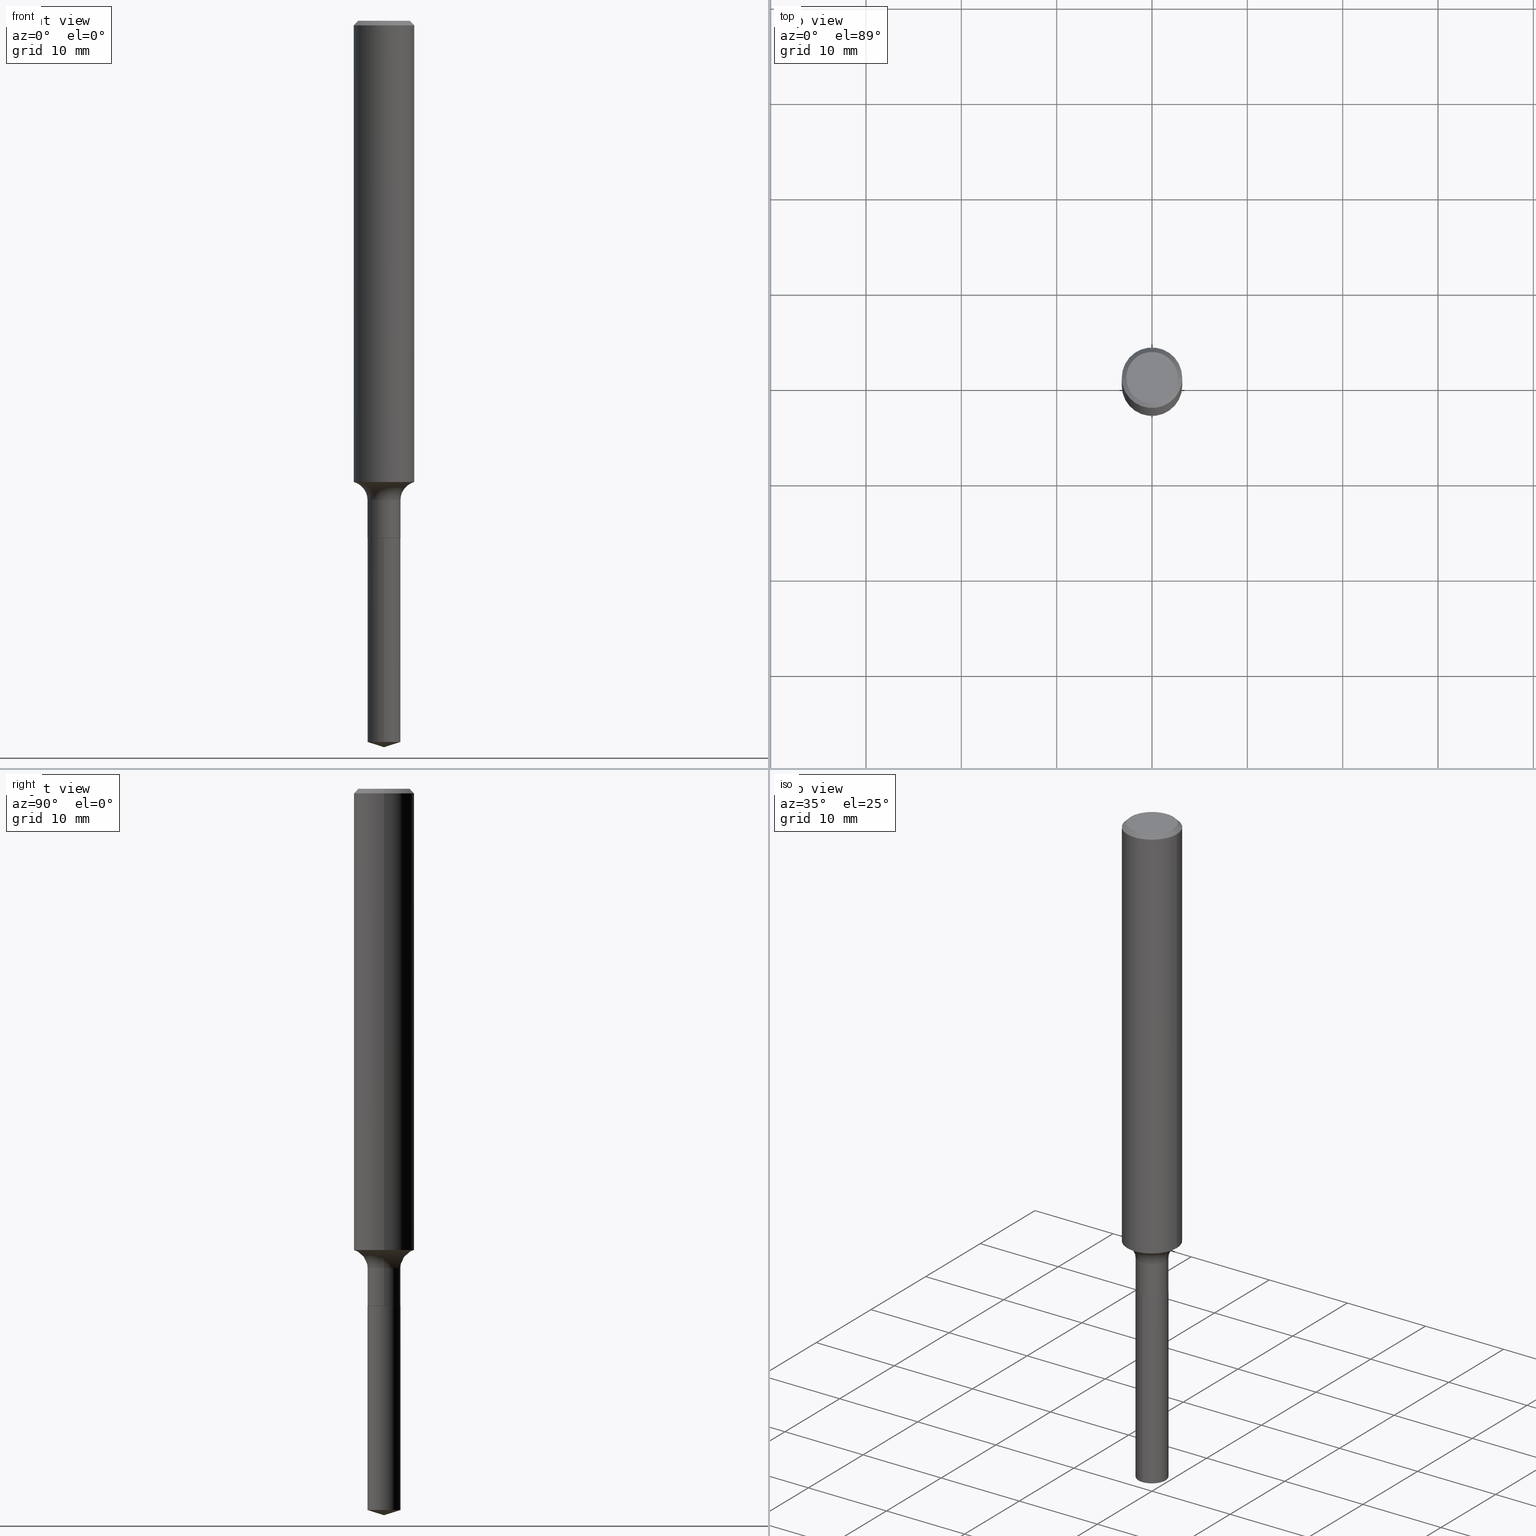
[diagram: canonical four-view strip — front | top / right | iso, engineering-drawing reading convention]
A machine part, canonical four-view strip (front | top / right | iso — engineering-drawing reading convention). The complete STEP part file that produces these views, byte-faithful:
ISO-10303-21;
HEADER;
FILE_DESCRIPTION (( 'STEP AP203' ),
    '1' );
FILE_NAME ('51582.STEP',
    '2024-04-19T13:02:44',
    ( '' ),
    ( '' ),
    'SwSTEP 2.0',
    'SolidWorks 2023',
    '' );
FILE_SCHEMA (( 'CONFIG_CONTROL_DESIGN' ));
ENDSEC;

DATA;
#1 = DIRECTION ( 'NONE',  ( 2.438088387897960049E-29, -3.491481338843145188E-15, -1.000000000000000000 ) ) ;
#2 = DATE_AND_TIME ( #315, #38 ) ;
#3 = EDGE_CURVE ( 'NONE', #265, #300, #84, .T. ) ;
#4 = CARTESIAN_POINT ( 'NONE',  ( -8.842895288216036193E-28, 1.277200107107775553E-13, 36.37007874015748143 ) ) ;
#5 = VECTOR ( 'NONE', #145, 39.37007874015748143 ) ;
#6 = DIRECTION ( 'NONE',  ( -2.432147788512749080E-29, 3.510557794335245055E-15, 1.000000000000000000 ) ) ;
#7 = CARTESIAN_POINT ( 'NONE',  ( 0.06800000000000000488, -7.930899861182205468E-15, -2.135500000000000398 ) ) ;
#8 = LOCAL_TIME ( 9, 2, 44.00000000000000000, #311 ) ;
#9 = DATE_AND_TIME ( #354, #74 ) ;
#10 = FACE_OUTER_BOUND ( 'NONE', #322, .T. ) ;
#11 = DIRECTION ( 'NONE',  ( -6.982962677686265922E-15, -1.000000000000000000, 4.017423520094504617E-15 ) ) ;
#12 = PERSON_AND_ORGANIZATION_ROLE ( 'design_supplier' ) ;
#13 = CARTESIAN_POINT ( 'NONE',  ( -0.1250000000000001110, 8.881784197001260212E-16, -6.148668862818637832E-30 ) ) ;
#14 = DIRECTION ( 'NONE',  ( 1.000000000000000000, -6.982962677686266711E-15, 0.000000000000000000 ) ) ;
#15 = EDGE_CURVE ( 'NONE', #334, #362, #160, .T. ) ;
#16 = ORIENTED_EDGE ( 'NONE', *, *, #390, .T. ) ;
#17 = ORIENTED_EDGE ( 'NONE', *, *, #125, .F. ) ;
#18 = MANIFOLD_SOLID_BREP ( 'Body-Move/Copy2[1]', #62 ) ;
#19 = CARTESIAN_POINT ( 'NONE',  ( 0.06799999999999999101, -4.748414620826661284E-16, 3.315800207541236003E-30 ) ) ;
#20 = CARTESIAN_POINT ( 'NONE',  ( 4.841050048724097207E-29, -6.911736458373892242E-15, -1.979600000000000470 ) ) ;
#21 = AXIS2_PLACEMENT_3D ( 'NONE', #138, #216, #332 ) ;
#22 = AXIS2_PLACEMENT_3D ( 'NONE', #393, #55, #471 ) ;
#23 = EDGE_LOOP ( 'NONE', ( #262, #445, #98, #188 ) ) ;
#24 = DIRECTION ( 'NONE',  ( 1.000000000000000000, -6.982962677686260400E-15, 0.000000000000000000 ) ) ;
#25 = CARTESIAN_POINT ( 'NONE',  ( 0.1250000000000000000, -9.230275248247509846E-16, -0.01875000000000014155 ) ) ;
#26 = ORIENTED_EDGE ( 'NONE', *, *, #113, .F. ) ;
#27 = CC_DESIGN_PERSON_AND_ORGANIZATION_ASSIGNMENT ( #462, #135, ( #108 ) ) ;
#28 = CARTESIAN_POINT ( 'NONE',  ( 0.1062499999999999972, -8.259777185439880671E-16, -2.602374448187577153E-17 ) ) ;
#29 = VERTEX_POINT ( 'NONE', #78 ) ;
#30 = CIRCLE ( 'NONE', #21, 0.1250000000000002498 ) ;
#31 = AXIS2_PLACEMENT_3D ( 'NONE', #81, #447, #487 ) ;
#32 = VERTEX_POINT ( 'NONE', #7 ) ;
#33 = EDGE_LOOP ( 'NONE', ( #147, #285, #112, #468 ) ) ;
#34 = VERTEX_POINT ( 'NONE', #308 ) ;
#35 = EDGE_CURVE ( 'NONE', #29, #102, #352, .T. ) ;
#36 = VECTOR ( 'NONE', #174, 39.37007874015748143 ) ;
#37 = AXIS2_PLACEMENT_3D ( 'NONE', #169, #283, #24 ) ;
#38 = LOCAL_TIME ( 9, 2, 44.00000000000000000, #363 ) ;
#39 = ADVANCED_FACE ( 'NONE', ( #345 ), #206, .T. ) ;
#40 = FACE_OUTER_BOUND ( 'NONE', #257, .T. ) ;
#41 = DIRECTION ( 'NONE',  ( 1.000000000000000000, 0.000000000000000000, 0.000000000000000000 ) ) ;
#42 = CARTESIAN_POINT ( 'NONE',  ( -0.1250000000000000000, 8.074050596074738982E-16, -0.01875000000000014155 ) ) ;
#43 = LENGTH_MEASURE_WITH_UNIT ( LENGTH_MEASURE( 0.02539999999999999897 ), #341 );
#44 = APPLICATION_PROTOCOL_DEFINITION ( 'international standard', 'config_control_design', 1994, #269 ) ;
#45 = EDGE_CURVE ( 'NONE', #102, #265, #202, .T. ) ;
#46 = DATE_AND_TIME ( #56, #231 ) ;
#47 = CARTESIAN_POINT ( 'NONE',  ( 5.223521370011452416E-29, -7.457804139768961435E-15, -2.136000000000000565 ) ) ;
#48 = CONICAL_SURFACE ( 'NONE', #177, 0.06750000000000000444, 0.7853981633978154298 ) ;
#49 = DIRECTION ( 'NONE',  ( -2.438088387897960049E-29, 3.491481338843145188E-15, 1.000000000000000000 ) ) ;
#50 = CIRCLE ( 'NONE', #402, 0.07800000000000001377 ) ;
#51 = DIRECTION ( 'NONE',  ( 1.000000000000000000, -6.982962677686268288E-15, 0.000000000000000000 ) ) ;
#52 = ADVANCED_FACE ( 'NONE', ( #40 ), #268, .T. ) ;
#53 = PERSON_AND_ORGANIZATION ( #287, #109 ) ;
#54 = DIRECTION ( 'NONE',  ( 6.776566513254269181E-15, 0.9537169507482307074, 0.3007057995042609622 ) ) ;
#55 = DIRECTION ( 'NONE',  ( -2.445468806185136597E-29, 3.491481338843145583E-15, 1.000000000000000000 ) ) ;
#56 = CALENDAR_DATE ( 2024, 19, 4 ) ;
#57 = DIRECTION ( 'NONE',  ( 1.000000000000000000, -6.982962677686264344E-15, 0.000000000000000000 ) ) ;
#58 = CARTESIAN_POINT ( 'NONE',  ( -0.1062499999999999972, 7.746724220558198188E-16, -2.602374448188655674E-17 ) ) ;
#59 = ORIENTED_EDGE ( 'NONE', *, *, #346, .T. ) ;
#60 = DIRECTION ( 'NONE',  ( 1.000000000000000000, -6.982962677686269866E-15, 0.000000000000000000 ) ) ;
#61 = DIRECTION ( 'NONE',  ( 2.445468806185136597E-29, -3.491481338843145583E-15, -1.000000000000000000 ) ) ;
#62 = CLOSED_SHELL ( 'NONE', ( #39, #318, #52, #263, #89 ) ) ;
#63 = CIRCLE ( 'NONE', #234, 0.06800000000000001876 ) ;
#64 = APPROVAL_PERSON_ORGANIZATION ( #469, #251, #281 ) ;
#65 = ORIENTED_EDGE ( 'NONE', *, *, #233, .T. ) ;
#66 = DIRECTION ( 'NONE',  ( -2.445468806185136597E-29, 3.491481338843145583E-15, 1.000000000000000000 ) ) ;
#67 = ADVANCED_FACE ( 'NONE', ( #451 ), #237, .F. ) ;
#68 = VERTEX_POINT ( 'NONE', #165 ) ;
#69 = DESIGN_CONTEXT ( 'detailed design', #343, 'design' ) ;
#70 = VERTEX_POINT ( 'NONE', #310 ) ;
#71 = CLOSED_SHELL ( 'NONE', ( #106, #261, #77, #370, #181, #489, #378, #153, #204, #67, #304, #475 ) ) ;
#72 = CONICAL_SURFACE ( 'NONE', #381, 0.1250000000000000000, 0.7853981633974453924 ) ;
#73 = ORIENTED_EDGE ( 'NONE', *, *, #113, .T. ) ;
#74 = LOCAL_TIME ( 9, 2, 44.00000000000000000, #214 ) ;
#75 = EDGE_CURVE ( 'NONE', #103, #155, #383, .T. ) ;
#76 = CC_DESIGN_PERSON_AND_ORGANIZATION_ASSIGNMENT ( #453, #124, ( #331 ) ) ;
#77 = ADVANCED_FACE ( 'NONE', ( #360 ), #255, .T. ) ;
#78 = CARTESIAN_POINT ( 'NONE',  ( 4.831690603169410321E-16, 0.06799999999998962430, -2.978559682356229921 ) ) ;
#79 = PERSON_AND_ORGANIZATION_ROLE ( 'design_owner' ) ;
#80 = DIRECTION ( 'NONE',  ( -0.7071067811868071429, 7.493145998871292905E-15, 0.7071067811862878916 ) ) ;
#81 = CARTESIAN_POINT ( 'NONE',  ( 5.223521370011452416E-29, -7.457804139768959857E-15, -2.136000000000000121 ) ) ;
#82 = DIRECTION ( 'NONE',  ( -0.7071067811865454633, 2.468850131082235367E-15, -0.7071067811865495711 ) ) ;
#83 = APPLICATION_PROTOCOL_DEFINITION ( 'international standard', 'config_control_design', 1994, #343 ) ;
#84 = CIRCLE ( 'NONE', #167, 0.06800000000000000488 ) ;
#85 = CIRCLE ( 'NONE', #129, 0.1250000000000002498 ) ;
#86 = EDGE_CURVE ( 'NONE', #191, #155, #148, .T. ) ;
#87 = DIRECTION ( 'NONE',  ( -6.982962677686265133E-15, -1.000000000000000000, 3.500519750498625151E-15 ) ) ;
#88 = DIRECTION ( 'NONE',  ( -2.432147788512749080E-29, 3.510557794335245055E-15, 1.000000000000000000 ) ) ;
#89 = ADVANCED_FACE ( 'NONE', ( #317 ), #90, .F. ) ;
#90 = PLANE ( 'NONE',  #207 ) ;
#91 = APPROVAL_DATE_TIME ( #349, #399 ) ;
#92 = DIRECTION ( 'NONE',  ( 0.7071067811868071429, -2.468850131084976659E-15, 0.7071067811862878916 ) ) ;
#93 = CYLINDRICAL_SURFACE ( 'NONE', #239, 0.06799999999999999101 ) ;
#94 = PRODUCT_DEFINITION_FORMATION_WITH_SPECIFIED_SOURCE ( 'ANY', '', #388, .NOT_KNOWN. ) ;
#95 = VERTEX_POINT ( 'NONE', #278 ) ;
#96 = CARTESIAN_POINT ( 'NONE',  ( 1.126013982226887373E-28, 1.186977066848620144E-15, -2.136000000000000565 ) ) ;
#97 = LINE ( 'NONE', #252, #168 ) ;
#98 = ORIENTED_EDGE ( 'NONE', *, *, #122, .F. ) ;
#99 = ORIENTED_EDGE ( 'NONE', *, *, #390, .F. ) ;
#100 = DIRECTION ( 'NONE',  ( -2.432147788512749080E-29, 3.510557794335245055E-15, 1.000000000000000000 ) ) ;
#101 = DIRECTION ( 'NONE',  ( -2.445468806185136877E-29, 3.491481338843145188E-15, 1.000000000000000000 ) ) ;
#102 = VERTEX_POINT ( 'NONE', #435 ) ;
#103 = VERTEX_POINT ( 'NONE', #58 ) ;
#104 = DIRECTION ( 'NONE',  ( -2.445468806185136597E-29, 3.491481338843145583E-15, 1.000000000000000000 ) ) ;
#105 = FACE_OUTER_BOUND ( 'NONE', #23, .T. ) ;
#106 = ADVANCED_FACE ( 'NONE', ( #398 ), #48, .T. ) ;
#107 = ORIENTED_EDGE ( 'NONE', *, *, #443, .F. ) ;
#108 = SECURITY_CLASSIFICATION ( '', '', #319 ) ;
#109 = ORGANIZATION ( 'UNSPECIFIED', 'UNSPECIFIED', '' ) ;
#110 = ORIENTED_EDGE ( 'NONE', *, *, #346, .F. ) ;
#111 = DIRECTION ( 'NONE',  ( 1.000000000000000000, -6.982962677686268288E-15, 0.000000000000000000 ) ) ;
#112 = ORIENTED_EDGE ( 'NONE', *, *, #431, .T. ) ;
#113 = EDGE_CURVE ( 'NONE', #114, #191, #175, .T. ) ;
#114 = VERTEX_POINT ( 'NONE', #28 ) ;
#115 = CARTESIAN_POINT ( 'NONE',  ( 5.223521370011452416E-29, -7.457804139768961435E-15, -2.136000000000000565 ) ) ;
#116 = VECTOR ( 'NONE', #288, 39.37007874015749564 ) ;
#117 = CC_DESIGN_APPROVAL ( #251, ( #108 ) ) ;
#118 = CARTESIAN_POINT ( 'NONE',  ( 5.223521370011452416E-29, -7.457804139768959857E-15, -2.136000000000000121 ) ) ;
#119 = CC_DESIGN_DATE_AND_TIME_ASSIGNMENT ( #9, #347, ( #108 ) ) ;
#120 = CIRCLE ( 'NONE', #179, 0.06800000000000000488 ) ;
#121 = DIRECTION ( 'NONE',  ( -2.445468806185136597E-29, 3.491481338843145583E-15, 1.000000000000000000 ) ) ;
#122 = EDGE_CURVE ( 'NONE', #34, #95, #465, .T. ) ;
#123 = DIRECTION ( 'NONE',  ( -6.982962677686265922E-15, -1.000000000000000000, 4.017423520094503828E-15 ) ) ;
#124 = PERSON_AND_ORGANIZATION_ROLE ( 'creator' ) ;
#125 = EDGE_CURVE ( 'NONE', #466, #442, #30, .T. ) ;
#126 = PRODUCT_DEFINITION_SHAPE ( 'NONE', 'NONE',  #331 ) ;
#127 = APPROVAL_STATUS ( 'not_yet_approved' ) ;
#128 = AXIS2_PLACEMENT_3D ( 'NONE', #348, #415, #351 ) ;
#129 = AXIS2_PLACEMENT_3D ( 'NONE', #279, #392, #57 ) ;
#130 = LINE ( 'NONE', #13, #36 ) ;
#131 = FACE_OUTER_BOUND ( 'NONE', #152, .T. ) ;
#132 = PERSON_AND_ORGANIZATION ( #287, #109 ) ;
#133 = DIRECTION ( 'NONE',  ( -2.445468806185136597E-29, 3.491481338843145583E-15, 1.000000000000000000 ) ) ;
#134 = CARTESIAN_POINT ( 'NONE',  ( 5.223521370011452416E-29, -7.457804139768961435E-15, -2.136000000000000565 ) ) ;
#135 = PERSON_AND_ORGANIZATION_ROLE ( 'classification_officer' ) ;
#136 = DIRECTION ( 'NONE',  ( -6.982962677686265922E-15, -1.000000000000000000, 4.017423520094503828E-15 ) ) ;
#137 = AXIS2_PLACEMENT_3D ( 'NONE', #96, #49, #250 ) ;
#138 = CARTESIAN_POINT ( 'NONE',  ( 4.657346666393600377E-29, -6.649456714846982657E-15, -1.904480095846706744 ) ) ;
#139 = EDGE_LOOP ( 'NONE', ( #401, #429, #185, #461 ) ) ;
#140 = APPROVAL_DATE_TIME ( #2, #251 ) ;
#141 = CARTESIAN_POINT ( 'NONE',  ( -4.748414620826138664E-16, -0.06800000000000747113, -2.136000000000000121 ) ) ;
#142 = DIRECTION ( 'NONE',  ( -2.445468806185136597E-29, 3.491481338843145583E-15, 1.000000000000000000 ) ) ;
#143 = EDGE_LOOP ( 'NONE', ( #396, #406 ) ) ;
#144 = EDGE_LOOP ( 'NONE', ( #190, #73, #193, #267 ) ) ;
#145 = DIRECTION ( 'NONE',  ( -2.445468806185136877E-29, 3.491481338843145188E-15, 1.000000000000000000 ) ) ;
#146 = CARTESIAN_POINT ( 'NONE',  ( -0.1250000000000000000, -2.469282575275018302E-15, -0.01875000000000014155 ) ) ;
#147 = ORIENTED_EDGE ( 'NONE', *, *, #448, .F. ) ;
#148 = CIRCLE ( 'NONE', #412, 0.1250000000000000000 ) ;
#149 = DIRECTION ( 'NONE',  ( 7.105427357601001859E-15, 1.000000000000000000, -3.491481338843145583E-15 ) ) ;
#150 = CONICAL_SURFACE ( 'NONE', #31, 0.06750000000000000444, 0.7853981633978154298 ) ;
#151 = CC_DESIGN_APPROVAL ( #399, ( #94 ) ) ;
#152 = EDGE_LOOP ( 'NONE', ( #182, #480, #481, #408 ) ) ;
#153 = ADVANCED_FACE ( 'NONE', ( #180 ), #187, .T. ) ;
#154 = EDGE_CURVE ( 'NONE', #103, #114, #305, .T. ) ;
#155 = VERTEX_POINT ( 'NONE', #146 ) ;
#156 = AXIS2_PLACEMENT_3D ( 'NONE', #47, #203, #136 ) ;
#157 = CYLINDRICAL_SURFACE ( 'NONE', #478, 0.06799999999999999101 ) ;
#158 = EDGE_CURVE ( 'NONE', #32, #362, #467, .T. ) ;
#159 = MECHANICAL_CONTEXT ( 'NONE', #269, 'mechanical' ) ;
#160 = LINE ( 'NONE', #163, #339 ) ;
#161 = AXIS2_PLACEMENT_3D ( 'NONE', #20, #246, #211 ) ;
#162 = CONICAL_SURFACE ( 'NONE', #446, 0.1250000000000000000, 0.7853981633974453924 ) ;
#163 = CARTESIAN_POINT ( 'NONE',  ( -0.06750000000000000444, -6.978187793130892200E-15, -2.136000000000000121 ) ) ;
#164 = DATE_AND_TIME ( #492, #235 ) ;
#165 = CARTESIAN_POINT ( 'NONE',  ( 7.296443365538247799E-29, -1.053167338300573714E-14, -3.000000000000000444 ) ) ;
#166 = PERSON_AND_ORGANIZATION ( #287, #109 ) ;
#167 = AXIS2_PLACEMENT_3D ( 'NONE', #115, #6, #220 ) ;
#168 = VECTOR ( 'NONE', #101, 39.37007874015748143 ) ;
#169 = CARTESIAN_POINT ( 'NONE',  ( 5.222298635608360736E-29, -7.456058399099539143E-15, -2.135500000000000398 ) ) ;
#170 = EDGE_CURVE ( 'NONE', #300, #265, #120, .T. ) ;
#171 = CARTESIAN_POINT ( 'NONE',  ( 4.841050048724097207E-29, -6.911736458373892242E-15, -1.979600000000000470 ) ) ;
#172 = DIRECTION ( 'NONE',  ( 6.982962677686265922E-15, 1.000000000000000000, -3.510557794335244661E-15 ) ) ;
#173 = APPROVAL_STATUS ( 'not_yet_approved' ) ;
#174 = DIRECTION ( 'NONE',  ( -2.445468806185136877E-29, 3.491481338843145188E-15, 1.000000000000000000 ) ) ;
#175 = LINE ( 'NONE', #25, #449 ) ;
#176 = ORIENTED_EDGE ( 'NONE', *, *, #293, .F. ) ;
#177 = AXIS2_PLACEMENT_3D ( 'NONE', #474, #184, #51 ) ;
#178 = CARTESIAN_POINT ( 'NONE',  ( 4.831690603169204231E-16, 0.06799999999999255251, -2.136000000000000565 ) ) ;
#179 = AXIS2_PLACEMENT_3D ( 'NONE', #134, #292, #11 ) ;
#180 = FACE_OUTER_BOUND ( 'NONE', #472, .T. ) ;
#181 = ADVANCED_FACE ( 'NONE', ( #105 ), #93, .T. ) ;
#182 = ORIENTED_EDGE ( 'NONE', *, *, #414, .F. ) ;
#183 = DIRECTION ( 'NONE',  ( 1.000000000000000000, -6.982962677686266711E-15, 4.877714189860772023E-29 ) ) ;
#184 = DIRECTION ( 'NONE',  ( -2.445468806185136597E-29, 3.491481338843145583E-15, 1.000000000000000000 ) ) ;
#185 = ORIENTED_EDGE ( 'NONE', *, *, #301, .T. ) ;
#186 = ORIENTED_EDGE ( 'NONE', *, *, #205, .T. ) ;
#187 = CYLINDRICAL_SURFACE ( 'NONE', #219, 0.1250000000000001110 ) ;
#188 = ORIENTED_EDGE ( 'NONE', *, *, #431, .F. ) ;
#189 = AXIS2_PLACEMENT_3D ( 'NONE', #118, #104, #266 ) ;
#190 = ORIENTED_EDGE ( 'NONE', *, *, #298, .F. ) ;
#191 = VERTEX_POINT ( 'NONE', #365 ) ;
#192 = MANIFOLD_SOLID_BREP ( 'Body-Move/Copy2[2]', #71 ) ;
#193 = ORIENTED_EDGE ( 'NONE', *, *, #86, .T. ) ;
#194 = AXIS2_PLACEMENT_3D ( 'NONE', #382, #1, #272 ) ;
#195 = AXIS2_PLACEMENT_3D ( 'NONE', #389, #245, #183 ) ;
#196 = CARTESIAN_POINT ( 'NONE',  ( 0.000000000000000000, 0.000000000000000000, 0.000000000000000000 ) ) ;
#197 = DIRECTION ( 'NONE',  ( -6.982962677686265922E-15, -1.000000000000000000, 0.000000000000000000 ) ) ;
#198 = AXIS2_PLACEMENT_3D ( 'NONE', #416, #458, #123 ) ;
#199 = VECTOR ( 'NONE', #470, 39.37007874015748143 ) ;
#200 = APPROVAL_STATUS ( 'not_yet_approved' ) ;
#201 = CALENDAR_DATE ( 2024, 19, 4 ) ;
#202 = LINE ( 'NONE', #238, #400 ) ;
#203 = DIRECTION ( 'NONE',  ( -2.432147788512749080E-29, 3.510557794335245055E-15, 1.000000000000000000 ) ) ;
#204 = ADVANCED_FACE ( 'NONE', ( #224 ), #162, .T. ) ;
#205 = EDGE_CURVE ( 'NONE', #155, #191, #491, .T. ) ;
#206 = CYLINDRICAL_SURFACE ( 'NONE', #198, 0.06800000000000001876 ) ;
#207 = AXIS2_PLACEMENT_3D ( 'NONE', #289, #371, #172 ) ;
#208 = VECTOR ( 'NONE', #92, 39.37007874015748143 ) ;
#209 = APPROVAL_PERSON_ORGANIZATION ( #273, #337, #413 ) ;
#210 = DIRECTION ( 'NONE',  ( -1.000000000000000000, 6.982962677686266711E-15, 0.000000000000000000 ) ) ;
#211 = DIRECTION ( 'NONE',  ( 1.000000000000000000, -6.982962677686262766E-15, 0.000000000000000000 ) ) ;
#212 = DIRECTION ( 'NONE',  ( 1.000000000000000000, -6.982962677686268288E-15, 4.883557194083112901E-29 ) ) ;
#213 = CARTESIAN_POINT ( 'NONE',  ( 4.841050048724097207E-29, -6.911736458373892242E-15, -1.979600000000000470 ) ) ;
#214 = COORDINATED_UNIVERSAL_TIME_OFFSET ( 5, 0, .BEHIND. ) ;
#215 = CARTESIAN_POINT ( 'NONE',  ( 0.1459999999999999631, -7.931249009316087403E-15, -1.979600000000000470 ) ) ;
#216 = DIRECTION ( 'NONE',  ( -2.445468806185136597E-29, 3.491481338843145583E-15, 1.000000000000000000 ) ) ;
#217 = ORIENTED_EDGE ( 'NONE', *, *, #441, .T. ) ;
#218 = CARTESIAN_POINT ( 'NONE',  ( 4.831690603169411307E-16, 0.06799999999999255251, -2.136000000000000565 ) ) ;
#219 = AXIS2_PLACEMENT_3D ( 'NONE', #321, #464, #403 ) ;
#220 = DIRECTION ( 'NONE',  ( -6.982962677686265922E-15, -1.000000000000000000, 4.017423520094504617E-15 ) ) ;
#221 = CARTESIAN_POINT ( 'NONE',  ( 6.364025535057318316E-46, -9.086141822531067035E-32, -2.602374448188125350E-17 ) ) ;
#222 = EDGE_LOOP ( 'NONE', ( #330, #379 ) ) ;
#223 = FACE_OUTER_BOUND ( 'NONE', #139, .T. ) ;
#224 = FACE_OUTER_BOUND ( 'NONE', #367, .T. ) ;
#225 = ORIENTED_EDGE ( 'NONE', *, *, #86, .F. ) ;
#226 = EDGE_CURVE ( 'NONE', #95, #34, #303, .T. ) ;
#227 = CARTESIAN_POINT ( 'NONE',  ( 0.1250000000000002220, -7.522327049557765996E-15, -1.904480095846706744 ) ) ;
#228 = EDGE_CURVE ( 'NONE', #442, #191, #97, .T. ) ;
#229 = ORIENTED_EDGE ( 'NONE', *, *, #233, .F. ) ;
#230 = AXIS2_PLACEMENT_3D ( 'NONE', #264, #149, #438 ) ;
#231 = LOCAL_TIME ( 9, 2, 44.00000000000000000, #274 ) ;
#232 = ORIENTED_EDGE ( 'NONE', *, *, #301, .F. ) ;
#233 = EDGE_CURVE ( 'NONE', #70, #334, #486, .T. ) ;
#234 = AXIS2_PLACEMENT_3D ( 'NONE', #430, #100, #296 ) ;
#235 = LOCAL_TIME ( 9, 2, 44.00000000000000000, #344 ) ;
#236 = PERSON_AND_ORGANIZATION ( #287, #109 ) ;
#237 = PLANE ( 'NONE',  #194 ) ;
#238 = CARTESIAN_POINT ( 'NONE',  ( -4.748414620826139650E-16, -0.06800000000000747113, -2.136000000000000121 ) ) ;
#239 = AXIS2_PLACEMENT_3D ( 'NONE', #260, #66, #248 ) ;
#240 =( NAMED_UNIT ( * ) PLANE_ANGLE_UNIT ( ) SI_UNIT ( $, .RADIAN. ) );
#241 = PERSON_AND_ORGANIZATION_ROLE ( 'creator' ) ;
#242 = DIRECTION ( 'NONE',  ( 2.445468806185136597E-29, -3.491481338843145583E-15, -1.000000000000000000 ) ) ;
#243 = CC_DESIGN_DATE_AND_TIME_ASSIGNMENT ( #46, #358, ( #331 ) ) ;
#244 = EDGE_CURVE ( 'NONE', #466, #95, #282, .T. ) ;
#245 = DIRECTION ( 'NONE',  ( -2.445468806185136597E-29, 3.491481338843145583E-15, 1.000000000000000000 ) ) ;
#246 = DIRECTION ( 'NONE',  ( -2.445468806185136597E-29, 3.491481338843145583E-15, 1.000000000000000000 ) ) ;
#247 = FACE_OUTER_BOUND ( 'NONE', #338, .T. ) ;
#248 = DIRECTION ( 'NONE',  ( 1.000000000000000000, -6.982962677686267499E-15, 4.876176775795935793E-29 ) ) ;
#249 = ORIENTED_EDGE ( 'NONE', *, *, #428, .F. ) ;
#250 = DIRECTION ( 'NONE',  ( 1.000000000000000000, -6.982962677686265922E-15, 4.876176775795935793E-29 ) ) ;
#251 = APPROVAL ( #127, 'UNSPECIFIED' ) ;
#252 = CARTESIAN_POINT ( 'NONE',  ( 0.1250000000000001110, -8.728703347107842263E-16, 6.095220969744926047E-30 ) ) ;
#253 = ORIENTED_EDGE ( 'NONE', *, *, #244, .T. ) ;
#254 = LINE ( 'NONE', #19, #199 ) ;
#255 = CYLINDRICAL_SURFACE ( 'NONE', #335, 0.1250000000000001110 ) ;
#256 = ORIENTED_EDGE ( 'NONE', *, *, #45, .F. ) ;
#257 = EDGE_LOOP ( 'NONE', ( #176, #327, #407 ) ) ;
#258 = CARTESIAN_POINT ( 'NONE',  ( -0.1250000000000002220, -5.761278295146855058E-15, -1.904480095846706744 ) ) ;
#259 = AXIS2_PLACEMENT_3D ( 'NONE', #171, #133, #212 ) ;
#260 = CARTESIAN_POINT ( 'NONE',  ( 0.000000000000000000, 0.000000000000000000, 0.000000000000000000 ) ) ;
#261 = ADVANCED_FACE ( 'NONE', ( #463 ), #72, .T. ) ;
#262 = ORIENTED_EDGE ( 'NONE', *, *, #158, .T. ) ;
#263 = ADVANCED_FACE ( 'NONE', ( #131 ), #423, .T. ) ;
#264 = CARTESIAN_POINT ( 'NONE',  ( -0.1459999999999999631, -5.874344064164145838E-15, -1.979600000000000470 ) ) ;
#265 = VERTEX_POINT ( 'NONE', #141 ) ;
#266 = DIRECTION ( 'NONE',  ( 1.000000000000000000, -6.982962677686268288E-15, 0.000000000000000000 ) ) ;
#267 = ORIENTED_EDGE ( 'NONE', *, *, #75, .F. ) ;
#268 = CONICAL_SURFACE ( 'NONE', #128, 124.8659371009178898, 1.265363707695898121 ) ;
#269 = APPLICATION_CONTEXT ( 'configuration controlled 3d designs of mechanical parts and assemblies' ) ;
#270 = EDGE_CURVE ( 'NONE', #362, #32, #417, .T. ) ;
#271 =( NAMED_UNIT ( * ) SI_UNIT ( $, .STERADIAN. ) SOLID_ANGLE_UNIT ( ) );
#272 = DIRECTION ( 'NONE',  ( -1.000000000000000000, 6.982962677686265922E-15, -4.876176775795935793E-29 ) ) ;
#273 = PERSON_AND_ORGANIZATION ( #287, #109 ) ;
#274 = COORDINATED_UNIVERSAL_TIME_OFFSET ( 5, 0, .BEHIND. ) ;
#275 = VECTOR ( 'NONE', #54, 39.37007874015748854 ) ;
#276 = CARTESIAN_POINT ( 'NONE',  ( 0.06750000000000000444, -7.929154120512783176E-15, -2.136000000000000121 ) ) ;
#277 = LINE ( 'NONE', #421, #275 ) ;
#278 = CARTESIAN_POINT ( 'NONE',  ( -0.06799999999999997713, -6.700728368419848320E-15, -1.979600000000000470 ) ) ;
#279 = CARTESIAN_POINT ( 'NONE',  ( 4.657346666393600377E-29, -6.649456714846982657E-15, -1.904480095846706744 ) ) ;
#280 = CARTESIAN_POINT ( 'NONE',  ( 4.585254011597165626E-31, -6.546527510330947764E-17, -0.01875000000000014155 ) ) ;
#281 = APPROVAL_ROLE ( '' ) ;
#282 = CIRCLE ( 'NONE', #230, 0.07800000000000001377 ) ;
#283 = DIRECTION ( 'NONE',  ( -2.445468806185136597E-29, 3.491481338843145583E-15, 1.000000000000000000 ) ) ;
#284 = DIRECTION ( 'NONE',  ( -2.445468806185136597E-29, 3.491481338843145583E-15, 1.000000000000000000 ) ) ;
#285 = ORIENTED_EDGE ( 'NONE', *, *, #270, .T. ) ;
#286 = APPROVAL_ROLE ( '' ) ;
#287 = PERSON ( 'UNSPECIFIED', 'UNSPECIFIED', 'UNSPECIFIED', ('UNSPECIFIED'), ('UNSPECIFIED'), ('UNSPECIFIED') ) ;
#288 = DIRECTION ( 'NONE',  ( -6.659769872151645499E-15, -0.9537169507482285979, 0.3007057995042676235 ) ) ;
#289 = CARTESIAN_POINT ( 'NONE',  ( 5.223521370011452416E-29, -7.457804139768961435E-15, -2.136000000000000565 ) ) ;
#290 = ORIENTED_EDGE ( 'NONE', *, *, #75, .T. ) ;
#291 = ORIENTED_EDGE ( 'NONE', *, *, #244, .F. ) ;
#292 = DIRECTION ( 'NONE',  ( -2.432147788512749080E-29, 3.510557794335245055E-15, 1.000000000000000000 ) ) ;
#293 = EDGE_CURVE ( 'NONE', #68, #29, #277, .T. ) ;
#294 = ORIENTED_EDGE ( 'NONE', *, *, #158, .F. ) ;
#295 = CIRCLE ( 'NONE', #189, 0.06750000000000000444 ) ;
#296 = DIRECTION ( 'NONE',  ( -6.982962677686265922E-15, -1.000000000000000000, 0.000000000000000000 ) ) ;
#297 = DIRECTION ( 'NONE',  ( -2.445468806185136597E-29, 3.491481338843145583E-15, 1.000000000000000000 ) ) ;
#298 = EDGE_CURVE ( 'NONE', #114, #103, #342, .T. ) ;
#299 = ORIENTED_EDGE ( 'NONE', *, *, #414, .T. ) ;
#300 = VERTEX_POINT ( 'NONE', #218 ) ;
#301 = EDGE_CURVE ( 'NONE', #70, #32, #426, .T. ) ;
#302 = ORIENTED_EDGE ( 'NONE', *, *, #228, .F. ) ;
#303 = CIRCLE ( 'NONE', #386, 0.06799999999999997713 ) ;
#304 = ADVANCED_FACE ( 'NONE', ( #247 ), #350, .F. ) ;
#305 = CIRCLE ( 'NONE', #450, 0.1062499999999999972 ) ;
#306 = DIRECTION ( 'NONE',  ( -2.432147788512749080E-29, 3.510557794335244661E-15, 1.000000000000000000 ) ) ;
#307 =( GEOMETRIC_REPRESENTATION_CONTEXT ( 3 ) GLOBAL_UNCERTAINTY_ASSIGNED_CONTEXT ( ( #484 ) ) GLOBAL_UNIT_ASSIGNED_CONTEXT ( ( #490, #240, #271 ) ) REPRESENTATION_CONTEXT ( 'NONE', 'WORKASPACE' ) );
#308 = CARTESIAN_POINT ( 'NONE',  ( 0.06799999999999997713, -7.386577920456557779E-15, -1.979600000000000470 ) ) ;
#309 = APPROVAL_DATE_TIME ( #164, #337 ) ;
#310 = CARTESIAN_POINT ( 'NONE',  ( 0.06750000000000000444, -7.929154120512783176E-15, -2.136000000000000121 ) ) ;
#311 = COORDINATED_UNIVERSAL_TIME_OFFSET ( 5, 0, .BEHIND. ) ;
#312 = VECTOR ( 'NONE', #320, 39.37007874015748143 ) ;
#313 = AXIS2_PLACEMENT_3D ( 'NONE', #397, #324, #418 ) ;
#314 = CARTESIAN_POINT ( 'NONE',  ( 4.585254011597165626E-31, -6.546527510330947764E-17, -0.01875000000000014155 ) ) ;
#315 = CALENDAR_DATE ( 2024, 19, 4 ) ;
#316 = FACE_OUTER_BOUND ( 'NONE', #439, .T. ) ;
#317 = FACE_OUTER_BOUND ( 'NONE', #222, .T. ) ;
#318 = ADVANCED_FACE ( 'NONE', ( #10 ), #409, .T. ) ;
#319 = SECURITY_CLASSIFICATION_LEVEL ( 'unclassified' ) ;
#320 = DIRECTION ( 'NONE',  ( -2.432147788512749080E-29, 3.510557794335244661E-15, 1.000000000000000000 ) ) ;
#321 = CARTESIAN_POINT ( 'NONE',  ( 0.000000000000000000, 0.000000000000000000, 0.000000000000000000 ) ) ;
#322 = EDGE_LOOP ( 'NONE', ( #249, #433, #374 ) ) ;
#323 = TOROIDAL_SURFACE ( 'NONE', #259, 0.1459999999999999631, 0.07799999999999999989 ) ;
#324 = DIRECTION ( 'NONE',  ( -2.445468806185136597E-29, 3.491481338843145583E-15, 1.000000000000000000 ) ) ;
#325 = CARTESIAN_POINT ( 'NONE',  ( 4.585254011597165626E-31, -6.546527510330947764E-17, -0.01875000000000014155 ) ) ;
#326 = ORIENTED_EDGE ( 'NONE', *, *, #226, .T. ) ;
#327 = ORIENTED_EDGE ( 'NONE', *, *, #428, .T. ) ;
#328 = FACE_OUTER_BOUND ( 'NONE', #361, .T. ) ;
#329 = DIRECTION ( 'NONE',  ( 1.000000000000000000, -6.982962677686266711E-15, 4.877714189860772023E-29 ) ) ;
#330 = ORIENTED_EDGE ( 'NONE', *, *, #3, .T. ) ;
#331 = PRODUCT_DEFINITION ( 'UNKNOWN', '', #94, #69 ) ;
#332 = DIRECTION ( 'NONE',  ( 1.000000000000000000, -6.982962677686264344E-15, 0.000000000000000000 ) ) ;
#333 = ORIENTED_EDGE ( 'NONE', *, *, #411, .F. ) ;
#334 = VERTEX_POINT ( 'NONE', #394 ) ;
#335 = AXIS2_PLACEMENT_3D ( 'NONE', #422, #142, #395 ) ;
#336 = ORIENTED_EDGE ( 'NONE', *, *, #125, .T. ) ;
#337 = APPROVAL ( #200, 'UNSPECIFIED' ) ;
#338 = EDGE_LOOP ( 'NONE', ( #229, #107 ) ) ;
#339 = VECTOR ( 'NONE', #80, 39.37007874015748143 ) ;
#340 = AXIS2_PLACEMENT_3D ( 'NONE', #477, #284, #357 ) ;
#341 =( LENGTH_UNIT ( ) NAMED_UNIT ( * ) SI_UNIT ( $, .METRE. ) );
#342 = CIRCLE ( 'NONE', #195, 0.1062499999999999972 ) ;
#343 = APPLICATION_CONTEXT ( 'configuration controlled 3d designs of mechanical parts and assemblies' ) ;
#344 = COORDINATED_UNIVERSAL_TIME_OFFSET ( 5, 0, .BEHIND. ) ;
#345 = FACE_OUTER_BOUND ( 'NONE', #375, .T. ) ;
#346 = EDGE_CURVE ( 'NONE', #442, #466, #85, .T. ) ;
#347 = DATE_TIME_ROLE ( 'classification_date' ) ;
#348 = CARTESIAN_POINT ( 'NONE',  ( -8.842895288216036193E-28, 1.277200107107775553E-13, 36.37007874015748143 ) ) ;
#349 = DATE_AND_TIME ( #201, #8 ) ;
#350 = PLANE ( 'NONE',  #137 ) ;
#351 = DIRECTION ( 'NONE',  ( -6.982962677686265133E-15, -1.000000000000000000, 3.500519750498625151E-15 ) ) ;
#352 = CIRCLE ( 'NONE', #385, 0.06800000000000001876 ) ;
#353 = APPROVAL_PERSON_ORGANIZATION ( #53, #399, #286 ) ;
#354 = CALENDAR_DATE ( 2024, 19, 4 ) ;
#355 = LINE ( 'NONE', #178, #312 ) ;
#356 = CC_DESIGN_PERSON_AND_ORGANIZATION_ASSIGNMENT ( #166, #241, ( #94 ) ) ;
#357 = DIRECTION ( 'NONE',  ( 1.000000000000000000, -6.982962677686260400E-15, 0.000000000000000000 ) ) ;
#358 = DATE_TIME_ROLE ( 'creation_date' ) ;
#359 = DIRECTION ( 'NONE',  ( -6.982962677686266711E-15, -1.000000000000000000, 3.491481338843145583E-15 ) ) ;
#360 = FACE_OUTER_BOUND ( 'NONE', #404, .T. ) ;
#361 = EDGE_LOOP ( 'NONE', ( #291, #110, #16, #483 ) ) ;
#362 = VERTEX_POINT ( 'NONE', #459 ) ;
#363 = COORDINATED_UNIVERSAL_TIME_OFFSET ( 5, 0, .BEHIND. ) ;
#364 = CARTESIAN_POINT ( 'NONE',  ( 7.296443365538247799E-29, -1.053167338300573556E-14, -3.000000000000000444 ) ) ;
#365 = CARTESIAN_POINT ( 'NONE',  ( 0.1250000000000000000, -9.383356098140928781E-16, -0.01875000000000014155 ) ) ;
#366 = ORIENTED_EDGE ( 'NONE', *, *, #15, .T. ) ;
#367 = EDGE_LOOP ( 'NONE', ( #26, #437, #290, #186 ) ) ;
#368 = AXIS2_PLACEMENT_3D ( 'NONE', #405, #297, #111 ) ;
#369 = LINE ( 'NONE', #364, #116 ) ;
#370 = ADVANCED_FACE ( 'NONE', ( #316 ), #454, .F. ) ;
#371 = DIRECTION ( 'NONE',  ( 2.432147788512749080E-29, -3.510557794335244661E-15, -1.000000000000000000 ) ) ;
#372 = ORIENTED_EDGE ( 'NONE', *, *, #411, .T. ) ;
#373 = DIRECTION ( 'NONE',  ( -1.000000000000000000, 6.982962677686266711E-15, 0.000000000000000000 ) ) ;
#374 = ORIENTED_EDGE ( 'NONE', *, *, #441, .F. ) ;
#375 = EDGE_LOOP ( 'NONE', ( #217, #299, #476, #256 ) ) ;
#376 = VECTOR ( 'NONE', #82, 39.37007874015748143 ) ;
#377 = AXIS2_PLACEMENT_3D ( 'NONE', #384, #452, #41 ) ;
#378 = ADVANCED_FACE ( 'NONE', ( #328 ), #323, .F. ) ;
#379 = ORIENTED_EDGE ( 'NONE', *, *, #170, .T. ) ;
#380 = CARTESIAN_POINT ( 'NONE',  ( -0.06799999999999999101, 4.831690603168680625E-16, -3.344875861373335354E-30 ) ) ;
#381 = AXIS2_PLACEMENT_3D ( 'NONE', #314, #242, #210 ) ;
#382 = CARTESIAN_POINT ( 'NONE',  ( 3.182012767528659158E-46, -4.543070911265533518E-32, -1.301187224094062675E-17 ) ) ;
#383 = LINE ( 'NONE', #42, #376 ) ;
#384 = CARTESIAN_POINT ( 'NONE',  ( 0.000000000000000000, 0.000000000000000000, 0.000000000000000000 ) ) ;
#385 = AXIS2_PLACEMENT_3D ( 'NONE', #419, #88, #197 ) ;
#386 = AXIS2_PLACEMENT_3D ( 'NONE', #213, #427, #432 ) ;
#387 = DIRECTION ( 'NONE',  ( 1.000000000000000000, -6.982962677686267499E-15, 4.876176775795935793E-29 ) ) ;
#388 = PRODUCT ( '51582', '51582', '', ( #159 ) ) ;
#389 = CARTESIAN_POINT ( 'NONE',  ( 6.364025535057318316E-46, -9.086141822531067035E-32, -2.602374448188125350E-17 ) ) ;
#390 = EDGE_CURVE ( 'NONE', #442, #34, #50, .T. ) ;
#391 = DIRECTION ( 'NONE',  ( -2.445468806185136597E-29, 3.491481338843145583E-15, 1.000000000000000000 ) ) ;
#392 = DIRECTION ( 'NONE',  ( -2.445468806185136597E-29, 3.491481338843145583E-15, 1.000000000000000000 ) ) ;
#393 = CARTESIAN_POINT ( 'NONE',  ( 4.585254011597165626E-31, -6.546527510330947764E-17, -0.01875000000000014155 ) ) ;
#394 = CARTESIAN_POINT ( 'NONE',  ( -0.06750000000000000444, -6.975538565956780999E-15, -2.136000000000000121 ) ) ;
#395 = DIRECTION ( 'NONE',  ( 1.000000000000000000, -6.982962677686267499E-15, 4.876176775795936353E-29 ) ) ;
#396 = ORIENTED_EDGE ( 'NONE', *, *, #154, .T. ) ;
#397 = CARTESIAN_POINT ( 'NONE',  ( 4.841050048724097207E-29, -6.911736458373892242E-15, -1.979600000000000470 ) ) ;
#398 = FACE_OUTER_BOUND ( 'NONE', #479, .T. ) ;
#399 = APPROVAL ( #173, 'UNSPECIFIED' ) ;
#400 = VECTOR ( 'NONE', #306, 39.37007874015748143 ) ;
#401 = ORIENTED_EDGE ( 'NONE', *, *, #15, .F. ) ;
#402 = AXIS2_PLACEMENT_3D ( 'NONE', #215, #359, #60 ) ;
#403 = DIRECTION ( 'NONE',  ( 1.000000000000000000, -6.982962677686267499E-15, 4.876176775795936353E-29 ) ) ;
#404 = EDGE_LOOP ( 'NONE', ( #59, #372, #225, #302 ) ) ;
#405 = CARTESIAN_POINT ( 'NONE',  ( 5.223521370011452416E-29, -7.457804139768959857E-15, -2.136000000000000121 ) ) ;
#406 = ORIENTED_EDGE ( 'NONE', *, *, #298, .T. ) ;
#407 = ORIENTED_EDGE ( 'NONE', *, *, #35, .F. ) ;
#408 = ORIENTED_EDGE ( 'NONE', *, *, #170, .F. ) ;
#409 = CONICAL_SURFACE ( 'NONE', #436, 124.8659371009178898, 1.265363707695898121 ) ;
#410 = DIMENSIONAL_EXPONENTS ( 1.000000000000000000, 0.000000000000000000, 0.000000000000000000, 0.000000000000000000, 0.000000000000000000, 0.000000000000000000, 0.000000000000000000 ) ;
#411 = EDGE_CURVE ( 'NONE', #466, #155, #130, .T. ) ;
#412 = AXIS2_PLACEMENT_3D ( 'NONE', #280, #391, #14 ) ;
#413 = APPROVAL_ROLE ( '' ) ;
#414 = EDGE_CURVE ( 'NONE', #29, #300, #355, .T. ) ;
#415 = DIRECTION ( 'NONE',  ( -2.432147788512749080E-29, 3.510557794335245055E-15, 1.000000000000000000 ) ) ;
#416 = CARTESIAN_POINT ( 'NONE',  ( 5.223521370011452416E-29, -7.457804139768961435E-15, -2.136000000000000565 ) ) ;
#417 = CIRCLE ( 'NONE', #37, 0.06800000000000000488 ) ;
#418 = DIRECTION ( 'NONE',  ( 1.000000000000000000, -6.982962677686268288E-15, 4.883557194083112901E-29 ) ) ;
#419 = CARTESIAN_POINT ( 'NONE',  ( 7.272751038144160854E-29, -1.041565859985725126E-14, -2.978559682356229921 ) ) ;
#420 = PRODUCT_RELATED_PRODUCT_CATEGORY ( 'detail', '', ( #388 ) ) ;
#421 = CARTESIAN_POINT ( 'NONE',  ( 7.353849763649251356E-29, -1.045017876514348666E-14, -3.000000000000000444 ) ) ;
#422 = CARTESIAN_POINT ( 'NONE',  ( 0.000000000000000000, 0.000000000000000000, 0.000000000000000000 ) ) ;
#423 = CYLINDRICAL_SURFACE ( 'NONE', #156, 0.06800000000000001876 ) ;
#424 = DIRECTION ( 'NONE',  ( -2.445468806185136597E-29, 3.491481338843145583E-15, 1.000000000000000000 ) ) ;
#425 = CC_DESIGN_APPROVAL ( #337, ( #331 ) ) ;
#426 = LINE ( 'NONE', #276, #208 ) ;
#427 = DIRECTION ( 'NONE',  ( -2.445468806185136597E-29, 3.491481338843145583E-15, 1.000000000000000000 ) ) ;
#428 = EDGE_CURVE ( 'NONE', #68, #102, #369, .T. ) ;
#429 = ORIENTED_EDGE ( 'NONE', *, *, #443, .T. ) ;
#430 = CARTESIAN_POINT ( 'NONE',  ( 7.272751038144160854E-29, -1.041565859985725126E-14, -2.978559682356229921 ) ) ;
#431 = EDGE_CURVE ( 'NONE', #32, #34, #254, .T. ) ;
#432 = DIRECTION ( 'NONE',  ( 1.000000000000000000, -6.982962677686262766E-15, 0.000000000000000000 ) ) ;
#433 = ORIENTED_EDGE ( 'NONE', *, *, #293, .T. ) ;
#434 = ADVANCED_BREP_SHAPE_REPRESENTATION ( '51582', ( #18, #192, #377 ), #307 ) ;
#435 = CARTESIAN_POINT ( 'NONE',  ( -4.748414620825935532E-16, -0.06800000000001045486, -2.978559682356229921 ) ) ;
#436 = AXIS2_PLACEMENT_3D ( 'NONE', #4, #456, #87 ) ;
#437 = ORIENTED_EDGE ( 'NONE', *, *, #154, .F. ) ;
#438 = DIRECTION ( 'NONE',  ( -1.000000000000000000, 7.105427357600997126E-15, 0.000000000000000000 ) ) ;
#439 = EDGE_LOOP ( 'NONE', ( #17, #253, #326, #99 ) ) ;
#440 = SHAPE_DEFINITION_REPRESENTATION ( #126, #434 ) ;
#441 = EDGE_CURVE ( 'NONE', #102, #29, #63, .T. ) ;
#442 = VERTEX_POINT ( 'NONE', #227 ) ;
#443 = EDGE_CURVE ( 'NONE', #334, #70, #295, .T. ) ;
#444 = ORIENTED_EDGE ( 'NONE', *, *, #228, .T. ) ;
#445 = ORIENTED_EDGE ( 'NONE', *, *, #448, .T. ) ;
#446 = AXIS2_PLACEMENT_3D ( 'NONE', #325, #61, #373 ) ;
#447 = DIRECTION ( 'NONE',  ( -2.445468806185136597E-29, 3.491481338843145583E-15, 1.000000000000000000 ) ) ;
#448 = EDGE_CURVE ( 'NONE', #362, #95, #482, .T. ) ;
#449 = VECTOR ( 'NONE', #460, 39.37007874015748143 ) ;
#450 = AXIS2_PLACEMENT_3D ( 'NONE', #221, #424, #329 ) ;
#451 = FACE_OUTER_BOUND ( 'NONE', #143, .T. ) ;
#452 = DIRECTION ( 'NONE',  ( 0.000000000000000000, 0.000000000000000000, 1.000000000000000000 ) ) ;
#453 = PERSON_AND_ORGANIZATION ( #287, #109 ) ;
#454 = TOROIDAL_SURFACE ( 'NONE', #313, 0.1459999999999999631, 0.07799999999999999989 ) ;
#455 = CC_DESIGN_SECURITY_CLASSIFICATION ( #108, ( #94 ) ) ;
#456 = DIRECTION ( 'NONE',  ( -2.432147788512749080E-29, 3.510557794335245055E-15, 1.000000000000000000 ) ) ;
#457 = CC_DESIGN_PERSON_AND_ORGANIZATION_ASSIGNMENT ( #132, #12, ( #94 ) ) ;
#458 = DIRECTION ( 'NONE',  ( -2.432147788512749080E-29, 3.510557794335245055E-15, 1.000000000000000000 ) ) ;
#459 = CARTESIAN_POINT ( 'NONE',  ( -0.06800000000000000488, -6.700728368419848320E-15, -2.135500000000000398 ) ) ;
#460 = DIRECTION ( 'NONE',  ( 0.7071067811865454633, -7.319954787623248157E-15, -0.7071067811865495711 ) ) ;
#461 = ORIENTED_EDGE ( 'NONE', *, *, #270, .F. ) ;
#462 = PERSON_AND_ORGANIZATION ( #287, #109 ) ;
#463 = FACE_OUTER_BOUND ( 'NONE', #144, .T. ) ;
#464 = DIRECTION ( 'NONE',  ( -2.445468806185136597E-29, 3.491481338843145583E-15, 1.000000000000000000 ) ) ;
#465 = CIRCLE ( 'NONE', #161, 0.06799999999999997713 ) ;
#466 = VERTEX_POINT ( 'NONE', #258 ) ;
#467 = CIRCLE ( 'NONE', #340, 0.06800000000000000488 ) ;
#468 = ORIENTED_EDGE ( 'NONE', *, *, #226, .F. ) ;
#469 = PERSON_AND_ORGANIZATION ( #287, #109 ) ;
#470 = DIRECTION ( 'NONE',  ( -2.445468806185136877E-29, 3.491481338843145188E-15, 1.000000000000000000 ) ) ;
#471 = DIRECTION ( 'NONE',  ( 1.000000000000000000, -6.982962677686266711E-15, 0.000000000000000000 ) ) ;
#472 = EDGE_LOOP ( 'NONE', ( #333, #336, #444, #473 ) ) ;
#473 = ORIENTED_EDGE ( 'NONE', *, *, #205, .F. ) ;
#474 = CARTESIAN_POINT ( 'NONE',  ( 5.223521370011452416E-29, -7.457804139768959857E-15, -2.136000000000000121 ) ) ;
#475 = ADVANCED_FACE ( 'NONE', ( #223 ), #150, .T. ) ;
#476 = ORIENTED_EDGE ( 'NONE', *, *, #3, .F. ) ;
#477 = CARTESIAN_POINT ( 'NONE',  ( 5.222298635608360736E-29, -7.456058399099539143E-15, -2.135500000000000398 ) ) ;
#478 = AXIS2_PLACEMENT_3D ( 'NONE', #196, #121, #387 ) ;
#479 = EDGE_LOOP ( 'NONE', ( #65, #366, #294, #232 ) ) ;
#480 = ORIENTED_EDGE ( 'NONE', *, *, #35, .T. ) ;
#481 = ORIENTED_EDGE ( 'NONE', *, *, #45, .T. ) ;
#482 = LINE ( 'NONE', #380, #5 ) ;
#483 = ORIENTED_EDGE ( 'NONE', *, *, #122, .T. ) ;
#484 = UNCERTAINTY_MEASURE_WITH_UNIT (LENGTH_MEASURE( 1.000000000000000082E-05 ), #490, 'distance_accuracy_value', 'NONE');
#485 = CC_DESIGN_PERSON_AND_ORGANIZATION_ASSIGNMENT ( #236, #79, ( #388 ) ) ;
#486 = CIRCLE ( 'NONE', #368, 0.06750000000000000444 ) ;
#487 = DIRECTION ( 'NONE',  ( 1.000000000000000000, -6.982962677686268288E-15, 0.000000000000000000 ) ) ;
#488 = FACE_OUTER_BOUND ( 'NONE', #33, .T. ) ;
#489 = ADVANCED_FACE ( 'NONE', ( #488 ), #157, .T. ) ;
#490 =( CONVERSION_BASED_UNIT ( 'INCH', #43 ) LENGTH_UNIT ( ) NAMED_UNIT ( #410 ) );
#491 = CIRCLE ( 'NONE', #22, 0.1250000000000000000 ) ;
#492 = CALENDAR_DATE ( 2024, 19, 4 ) ;
ENDSEC;
END-ISO-10303-21;
